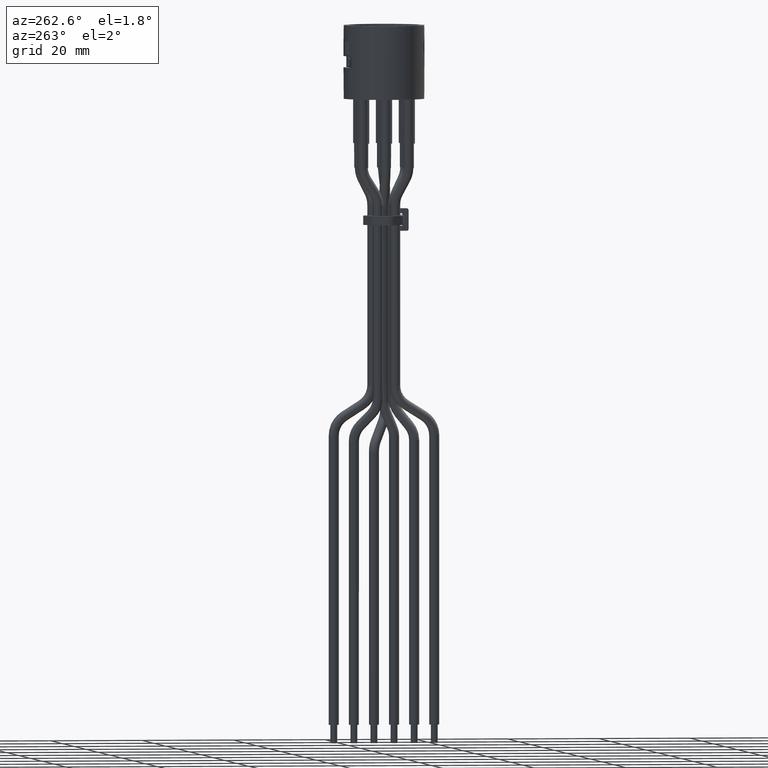
[diagram: clean part render]
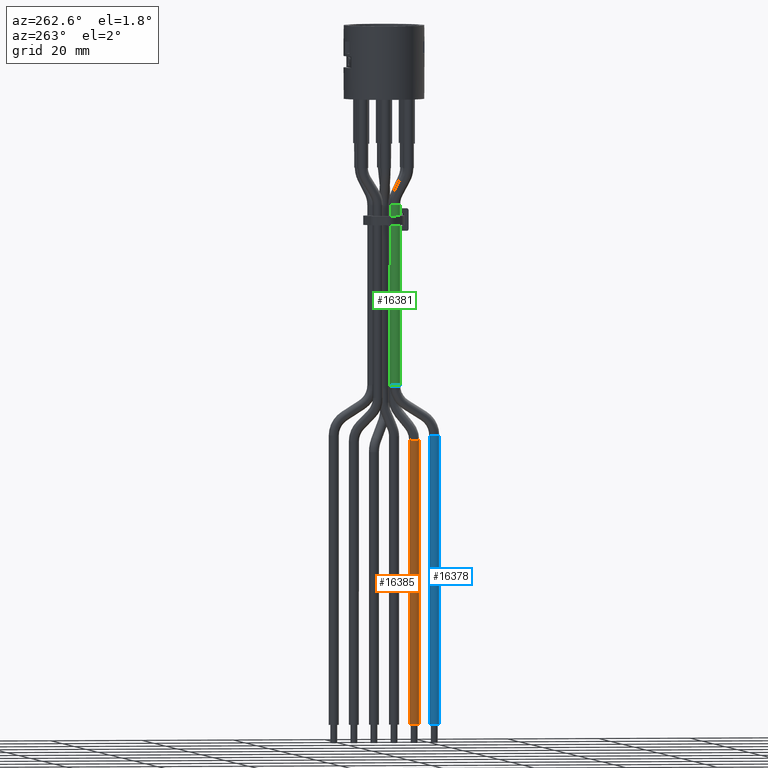
[diagram: same view with three faces highlighted in distinct colors, each labeled with its STEP entity id]
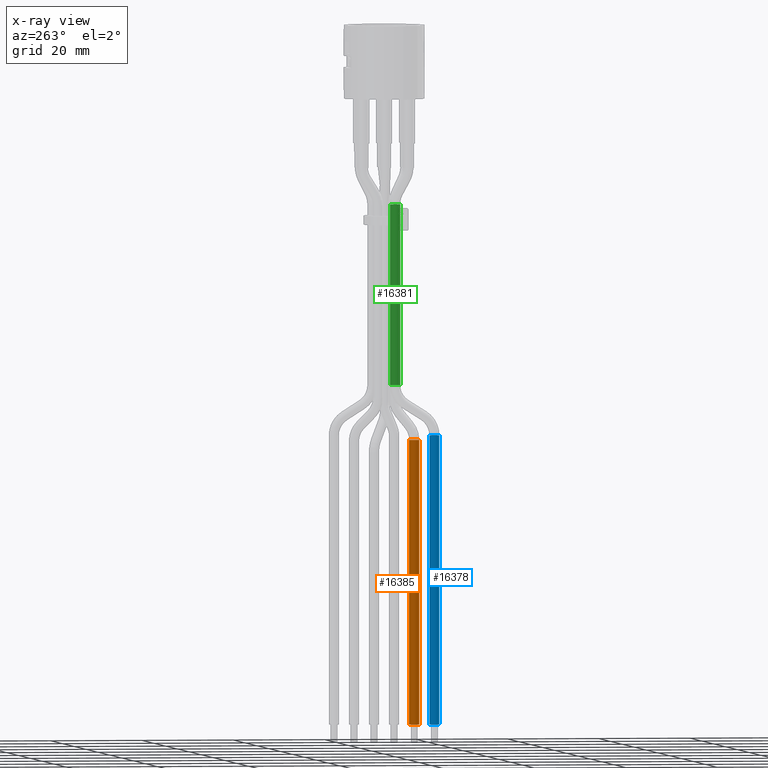
[diagram: x-ray of the same camera — body ghosted, the three highlighted faces saturated]
A machine part, auxiliary view with three faces highlighted in distinct colors.
The next image is the same camera in x-ray (body ghosted, the three faces saturated) — at least one of them is partly hidden behind the body in this view.
Their STEP definitions:

[orange] entity #16385 — the highlighted cylindrical surface (bore or boss wall) has radius 1.1 mm, axis along (-0, 0, -1).
#1743=FACE_OUTER_BOUND('',#2626,.T.);
#2626=EDGE_LOOP('',(#15265,#15266,#15267,#15268,#15269));
#3042=CIRCLE('',#17559,1.1);
#3043=CIRCLE('',#17560,1.1);
#3044=CIRCLE('',#17561,1.1);
#4887=LINE('',#27903,#6717);
#6717=VECTOR('',#21693,1.1);
#8280=VERTEX_POINT('',#27900);
#8281=VERTEX_POINT('',#27902);
#8282=VERTEX_POINT('',#27904);
#10628=EDGE_CURVE('',#8280,#8280,#3042,.T.);
#10629=EDGE_CURVE('',#8280,#8281,#4887,.T.);
#10630=EDGE_CURVE('',#8281,#8282,#3043,.T.);
#10631=EDGE_CURVE('',#8282,#8281,#3044,.T.);
#15265=ORIENTED_EDGE('',*,*,#10628,.F.);
#15266=ORIENTED_EDGE('',*,*,#10629,.T.);
#15267=ORIENTED_EDGE('',*,*,#10630,.T.);
#15268=ORIENTED_EDGE('',*,*,#10631,.T.);
#15269=ORIENTED_EDGE('',*,*,#10629,.F.);
#15590=CYLINDRICAL_SURFACE('',#17558,1.1);
#16385=ADVANCED_FACE('',(#1743),#15590,.T.);
#17558=AXIS2_PLACEMENT_3D('',#27899,#21689,#21690);
#17559=AXIS2_PLACEMENT_3D('',#27901,#21691,#21692);
#17560=AXIS2_PLACEMENT_3D('',#27905,#21694,#21695);
#17561=AXIS2_PLACEMENT_3D('',#27906,#21696,#21697);
#21689=DIRECTION('center_axis',(-1.76247905159243E-15,5.05196216376713E-15,
-1.));
#21690=DIRECTION('ref_axis',(-5.04403065997043E-15,1.,5.05196216376714E-15));
#21691=DIRECTION('center_axis',(-2.38697950294408E-15,5.05196216376712E-15,
-1.));
#21692=DIRECTION('ref_axis',(-5.04403065997043E-15,1.,4.68104674417646E-15));
#21693=DIRECTION('',(1.76247905159243E-15,-5.05196216376713E-15,1.));
#21694=DIRECTION('center_axis',(-2.38697950294408E-15,5.05196216376712E-15,
-1.));
#21695=DIRECTION('ref_axis',(-5.04403065997043E-15,1.,4.68104674417646E-15));
#21696=DIRECTION('center_axis',(-2.38697950294408E-15,5.05196216376712E-15,
-1.));
#21697=DIRECTION('ref_axis',(-5.04403065997043E-15,1.,4.68104674417646E-15));
#27899=CARTESIAN_POINT('Origin',(-0.0214932559554973,-6.59999999999966,
-74.1940922432409));
#27900=CARTESIAN_POINT('',(-0.0214932559556003,-7.69999999999935,-136.));
#27901=CARTESIAN_POINT('Origin',(-0.0214932559556062,-6.59999999999935,
-136.));
#27902=CARTESIAN_POINT('',(-0.0214932559554913,-7.69999999999966,-74.1940922432409));
#27903=CARTESIAN_POINT('',(-0.0214932559554919,-7.69999999999966,-74.1940922432409));
#27904=CARTESIAN_POINT('',(0.257443649820582,-5.53595385316388,-74.1940922432408));
#27905=CARTESIAN_POINT('Origin',(-0.0214932559554973,-6.59999999999966,
-74.1940922432409));
#27906=CARTESIAN_POINT('Origin',(-0.0214932559554973,-6.59999999999966,
-74.1940922432409));

[blue] entity #16378 — the highlighted cylindrical surface (bore or boss wall) has radius 1.1 mm, axis along (-0, 0, -1).
#1736=FACE_OUTER_BOUND('',#2618,.T.);
#2618=EDGE_LOOP('',(#15228,#15229,#15230,#15231,#15232));
#3031=CIRCLE('',#17541,1.1);
#3032=CIRCLE('',#17542,1.1);
#3033=CIRCLE('',#17543,1.1);
#4883=LINE('',#27872,#6713);
#6713=VECTOR('',#21653,1.1);
#8271=VERTEX_POINT('',#27869);
#8272=VERTEX_POINT('',#27871);
#8273=VERTEX_POINT('',#27873);
#10613=EDGE_CURVE('',#8271,#8271,#3031,.T.);
#10614=EDGE_CURVE('',#8271,#8272,#4883,.T.);
#10615=EDGE_CURVE('',#8272,#8273,#3032,.T.);
#10616=EDGE_CURVE('',#8273,#8272,#3033,.T.);
#15228=ORIENTED_EDGE('',*,*,#10613,.F.);
#15229=ORIENTED_EDGE('',*,*,#10614,.T.);
#15230=ORIENTED_EDGE('',*,*,#10615,.T.);
#15231=ORIENTED_EDGE('',*,*,#10616,.T.);
#15232=ORIENTED_EDGE('',*,*,#10614,.F.);
#15586=CYLINDRICAL_SURFACE('',#17540,1.1);
#16378=ADVANCED_FACE('',(#1736),#15586,.T.);
#17540=AXIS2_PLACEMENT_3D('',#27868,#21649,#21650);
#17541=AXIS2_PLACEMENT_3D('',#27870,#21651,#21652);
#17542=AXIS2_PLACEMENT_3D('',#27874,#21654,#21655);
#17543=AXIS2_PLACEMENT_3D('',#27875,#21656,#21657);
#21649=DIRECTION('center_axis',(-2.05391259555653E-15,4.88542871007335E-15,
-1.));
#21650=DIRECTION('ref_axis',(-4.99672001971652E-15,1.,4.88542871007336E-15));
#21651=DIRECTION('center_axis',(-1.72778458207289E-15,5.16298446622964E-15,
-1.));
#21652=DIRECTION('ref_axis',(-4.99672001971652E-15,1.,4.99645101253588E-15));
#21653=DIRECTION('',(2.05391259555653E-15,-4.88542871007335E-15,1.));
#21654=DIRECTION('center_axis',(-1.72778458207289E-15,5.16298446622964E-15,
-1.));
#21655=DIRECTION('ref_axis',(-4.99672001971652E-15,1.,4.99645101253588E-15));
#21656=DIRECTION('center_axis',(-1.72778458207289E-15,5.16298446622964E-15,
-1.));
#21657=DIRECTION('ref_axis',(-4.99672001971652E-15,1.,4.99645101253588E-15));
#27868=CARTESIAN_POINT('Origin',(-0.0214932559554812,-10.9999999999997,
-73.1931236850649));
#27869=CARTESIAN_POINT('',(-0.0214932559556068,-12.0999999999994,-136.));
#27870=CARTESIAN_POINT('Origin',(-0.0214932559556102,-10.9999999999994,
-136.));
#27871=CARTESIAN_POINT('',(-0.0214932559554778,-12.0999999999997,-73.1931236850649));
#27872=CARTESIAN_POINT('',(-0.0214932559554758,-12.0999999999997,-73.1931236850649));
#27873=CARTESIAN_POINT('',(-0.157572580319594,-9.90844953507347,-73.1931236850649));
#27874=CARTESIAN_POINT('Origin',(-0.0214932559554812,-10.9999999999997,
-73.1931236850649));
#27875=CARTESIAN_POINT('Origin',(-0.0214932559554812,-10.9999999999997,
-73.1931236850649));

[green] entity #16381 — the highlighted cylindrical surface (bore or boss wall) has radius 1.1 mm, axis along (-0, 0, -1).
#1739=FACE_OUTER_BOUND('',#2621,.T.);
#2621=EDGE_LOOP('',(#15245,#15246,#15247,#15248,#15249,#15250));
#3029=CIRCLE('',#17538,1.1);
#3030=CIRCLE('',#17539,1.1);
#3037=CIRCLE('',#17550,1.1);
#3038=CIRCLE('',#17551,1.1);
#4885=LINE('',#27886,#6715);
#6715=VECTOR('',#21671,1.1);
#8268=VERTEX_POINT('',#27774);
#8269=VERTEX_POINT('',#27776);
#8276=VERTEX_POINT('',#27885);
#8277=VERTEX_POINT('',#27887);
#10610=EDGE_CURVE('',#8268,#8269,#3029,.T.);
#10611=EDGE_CURVE('',#8269,#8268,#3030,.T.);
#10621=EDGE_CURVE('',#8269,#8276,#4885,.T.);
#10622=EDGE_CURVE('',#8276,#8277,#3037,.T.);
#10623=EDGE_CURVE('',#8277,#8276,#3038,.T.);
#15245=ORIENTED_EDGE('',*,*,#10611,.F.);
#15246=ORIENTED_EDGE('',*,*,#10621,.T.);
#15247=ORIENTED_EDGE('',*,*,#10622,.T.);
#15248=ORIENTED_EDGE('',*,*,#10623,.T.);
#15249=ORIENTED_EDGE('',*,*,#10621,.F.);
#15250=ORIENTED_EDGE('',*,*,#10610,.F.);
#15588=CYLINDRICAL_SURFACE('',#17549,1.1);
#16381=ADVANCED_FACE('',(#1739),#15588,.T.);
#17538=AXIS2_PLACEMENT_3D('',#27777,#21645,#21646);
#17539=AXIS2_PLACEMENT_3D('',#27778,#21647,#21648);
#17549=AXIS2_PLACEMENT_3D('',#27884,#21669,#21670);
#17550=AXIS2_PLACEMENT_3D('',#27888,#21672,#21673);
#17551=AXIS2_PLACEMENT_3D('',#27889,#21674,#21675);
#21645=DIRECTION('center_axis',(-1.77635683940024E-15,5.10747331499839E-15,
-1.));
#21646=DIRECTION('ref_axis',(-5.01249023313449E-15,1.,5.05953186620776E-15));
#21647=DIRECTION('center_axis',(-1.77635683940024E-15,5.10747331499839E-15,
-1.));
#21648=DIRECTION('ref_axis',(-5.01249023313449E-15,1.,5.05953186620776E-15));
#21669=DIRECTION('center_axis',(-2.0261570199409E-15,4.94093986130461E-15,
-1.));
#21670=DIRECTION('ref_axis',(-5.01249023313449E-15,1.,4.94093986130462E-15));
#21671=DIRECTION('',(2.0261570199409E-15,-4.94093986130461E-15,1.));
#21672=DIRECTION('center_axis',(-1.77635683940024E-15,5.10747331499839E-15,
-1.));
#21673=DIRECTION('ref_axis',(-5.01249023313449E-15,1.,5.05953186620776E-15));
#21674=DIRECTION('center_axis',(-1.77635683940024E-15,5.10747331499839E-15,
-1.));
#21675=DIRECTION('ref_axis',(-5.01249023313449E-15,1.,5.05953186620776E-15));
#27774=CARTESIAN_POINT('',(-0.970324210385751,-3.38902107807711,-62.2068763149354));
#27776=CARTESIAN_POINT('',(-1.10640353474986,-3.39747061315091,-62.2068763149354));
#27777=CARTESIAN_POINT('Origin',(-1.10640353474987,-2.29747061315091,-62.2068763149354));
#27778=CARTESIAN_POINT('Origin',(-1.10640353474987,-2.29747061315091,-62.2068763149354));
#27884=CARTESIAN_POINT('Origin',(-1.10640353474979,-2.2974706131511,-22.9286005346732));
#27885=CARTESIAN_POINT('',(-1.10640353474978,-3.3974706131511,-22.9286005346732));
#27886=CARTESIAN_POINT('',(-1.10640353474978,-3.3974706131511,-22.9286005346732));
#27887=CARTESIAN_POINT('',(-1.63848374142819,-3.26022221853074,-22.9286005346732));
#27888=CARTESIAN_POINT('Origin',(-1.10640353474979,-2.2974706131511,-22.9286005346732));
#27889=CARTESIAN_POINT('Origin',(-1.10640353474979,-2.2974706131511,-22.9286005346732));